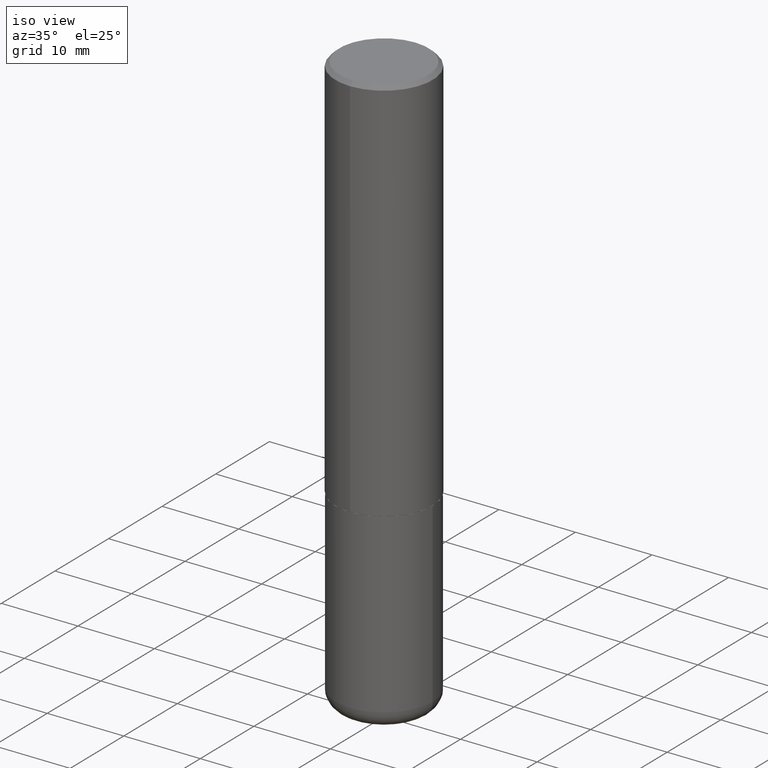
[diagram: clean part render]
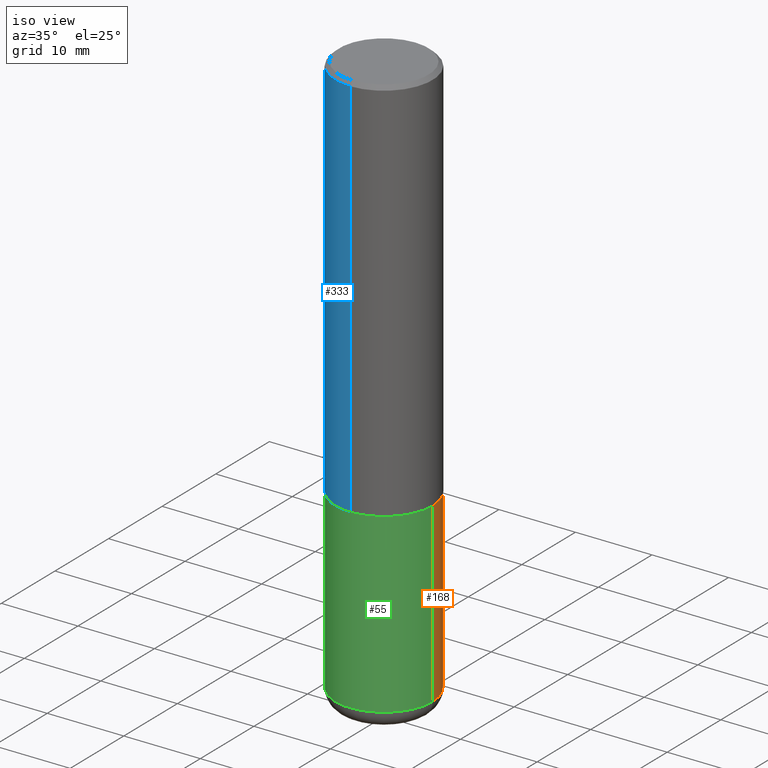
[diagram: same view with three faces highlighted in distinct colors, each labeled with its STEP entity id]
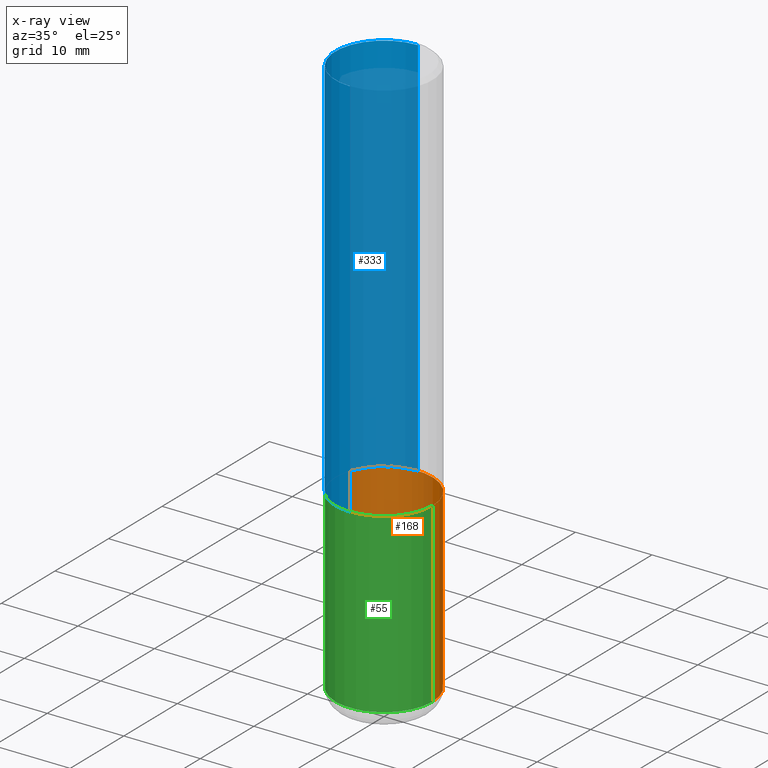
[diagram: x-ray of the same camera — body ghosted, the three highlighted faces saturated]
A machine part, iso view with three faces highlighted in distinct colors.
The next image is the same camera in x-ray (body ghosted, the three faces saturated) — at least one of them is partly hidden behind the body in this view.
Their STEP definitions:

[orange] entity #168 — the highlighted cylindrical surface (partial cylindrical patch) has radius 6.35 mm, axis along (-0, 0, 1).
#6 = VERTEX_POINT ( 'NONE', #291 ) ;
#7 = CIRCLE ( 'NONE', #208, 0.2500000000000000000 ) ;
#11 = DIRECTION ( 'NONE',  ( -2.445468806185136877E-29, 3.491481338843145188E-15, 1.000000000000000000 ) ) ;
#20 = CARTESIAN_POINT ( 'NONE',  ( -0.2500000000000000000, -6.795229847459672846E-15, -2.000000000000000444 ) ) ;
#36 = VERTEX_POINT ( 'NONE', #230 ) ;
#47 = LINE ( 'NONE', #244, #409 ) ;
#88 = FACE_OUTER_BOUND ( 'NONE', #135, .T. ) ;
#92 = ORIENTED_EDGE ( 'NONE', *, *, #198, .T. ) ;
#111 = ORIENTED_EDGE ( 'NONE', *, *, #249, .F. ) ;
#123 = CYLINDRICAL_SURFACE ( 'NONE', #316, 0.2500000000000000000 ) ;
#130 = CARTESIAN_POINT ( 'NONE',  ( 4.890937612370273754E-29, -6.982962677686291954E-15, -2.000000000000000444 ) ) ;
#135 = EDGE_LOOP ( 'NONE', ( #92, #375, #111, #345 ) ) ;
#157 = DIRECTION ( 'NONE',  ( 1.000000000000000000, -6.982962677686266711E-15, 4.876176775795935793E-29 ) ) ;
#158 = VERTEX_POINT ( 'NONE', #20 ) ;
#159 = DIRECTION ( 'NONE',  ( 1.000000000000000000, -6.982962677686266711E-15, 0.000000000000000000 ) ) ;
#168 = ADVANCED_FACE ( 'NONE', ( #88 ), #123, .T. ) ;
#197 = CIRCLE ( 'NONE', #317, 0.2500000000000000555 ) ;
#198 = EDGE_CURVE ( 'NONE', #6, #36, #197, .T. ) ;
#208 = AXIS2_PLACEMENT_3D ( 'NONE', #130, #414, #159 ) ;
#230 = CARTESIAN_POINT ( 'NONE',  ( -0.2500000000000000000, -8.383853856633304202E-15, -2.910000000000000586 ) ) ;
#244 = CARTESIAN_POINT ( 'NONE',  ( 0.2500000000000000000, -1.745740669421566678E-15, 1.219044193948983948E-29 ) ) ;
#249 = EDGE_CURVE ( 'NONE', #260, #158, #7, .T. ) ;
#251 = CARTESIAN_POINT ( 'NONE',  ( 0.000000000000000000, 0.000000000000000000, 0.000000000000000000 ) ) ;
#260 = VERTEX_POINT ( 'NONE', #300 ) ;
#288 = CARTESIAN_POINT ( 'NONE',  ( 7.116314225998749245E-29, -1.016021069603355467E-14, -2.910000000000000586 ) ) ;
#291 = CARTESIAN_POINT ( 'NONE',  ( 0.2500000000000000000, -1.190595136545512292E-14, -2.910000000000000586 ) ) ;
#300 = CARTESIAN_POINT ( 'NONE',  ( 0.2500000000000000000, -8.728703347107858632E-15, -2.000000000000000444 ) ) ;
#316 = AXIS2_PLACEMENT_3D ( 'NONE', #251, #344, #157 ) ;
#317 = AXIS2_PLACEMENT_3D ( 'NONE', #288, #379, #347 ) ;
#332 = CARTESIAN_POINT ( 'NONE',  ( -0.2500000000000000000, 1.776356839400250465E-15, -1.229733772563726445E-29 ) ) ;
#344 = DIRECTION ( 'NONE',  ( -2.445468806185136597E-29, 3.491481338843145583E-15, 1.000000000000000000 ) ) ;
#345 = ORIENTED_EDGE ( 'NONE', *, *, #413, .F. ) ;
#347 = DIRECTION ( 'NONE',  ( 1.000000000000000000, -6.982962677686269077E-15, 0.000000000000000000 ) ) ;
#359 = LINE ( 'NONE', #332, #362 ) ;
#362 = VECTOR ( 'NONE', #392, 39.37007874015748143 ) ;
#367 = EDGE_CURVE ( 'NONE', #36, #158, #359, .T. ) ;
#375 = ORIENTED_EDGE ( 'NONE', *, *, #367, .T. ) ;
#379 = DIRECTION ( 'NONE',  ( -2.445468806185136597E-29, 3.491481338843145583E-15, 1.000000000000000000 ) ) ;
#392 = DIRECTION ( 'NONE',  ( -2.445468806185136877E-29, 3.491481338843145188E-15, 1.000000000000000000 ) ) ;
#409 = VECTOR ( 'NONE', #11, 39.37007874015748143 ) ;
#413 = EDGE_CURVE ( 'NONE', #6, #260, #47, .T. ) ;
#414 = DIRECTION ( 'NONE',  ( -2.445468806185136597E-29, 3.491481338843145583E-15, 1.000000000000000000 ) ) ;

[blue] entity #333 — the highlighted cylindrical surface (partial cylindrical patch) has radius 6.35 mm, axis along (-0, 0, 1).
#5 = DIRECTION ( 'NONE',  ( -6.982962677686266711E-15, -1.000000000000000000, 3.490774419091693834E-15 ) ) ;
#21 = EDGE_CURVE ( 'NONE', #285, #309, #352, .T. ) ;
#27 = CYLINDRICAL_SURFACE ( 'NONE', #262, 0.2500000000000001110 ) ;
#57 = CARTESIAN_POINT ( 'NONE',  ( 4.891924891218388487E-31, -6.981548838183405960E-17, -0.02000000000000005593 ) ) ;
#61 = CARTESIAN_POINT ( 'NONE',  ( 1.745740669421566875E-15, 0.2499999999999999167, -0.02000000000000092676 ) ) ;
#62 = EDGE_CURVE ( 'NONE', #309, #189, #370, .T. ) ;
#64 = DIRECTION ( 'NONE',  ( -2.445962445609187395E-29, 3.490774419091693439E-15, 1.000000000000000000 ) ) ;
#68 = CARTESIAN_POINT ( 'NONE',  ( 0.000000000000000000, 0.000000000000000000, 0.000000000000000000 ) ) ;
#76 = ORIENTED_EDGE ( 'NONE', *, *, #110, .T. ) ;
#82 = DIRECTION ( 'NONE',  ( -2.445962445609187114E-29, 3.490774419091693439E-15, 1.000000000000000000 ) ) ;
#90 = CARTESIAN_POINT ( 'NONE',  ( -1.715124499442882299E-15, -0.2500000000000000555, -0.01999999999999918510 ) ) ;
#99 = DIRECTION ( 'NONE',  ( -2.445962445609187395E-29, 3.490774419091693439E-15, 1.000000000000000000 ) ) ;
#110 = EDGE_CURVE ( 'NONE', #382, #189, #155, .T. ) ;
#141 = CIRCLE ( 'NONE', #374, 0.2500000000000002220 ) ;
#146 = VECTOR ( 'NONE', #82, 39.37007874015748143 ) ;
#155 = LINE ( 'NONE', #185, #146 ) ;
#185 = CARTESIAN_POINT ( 'NONE',  ( -1.745740669421567467E-15, -0.2500000000000001110, 8.726936047729238529E-16 ) ) ;
#189 = VERTEX_POINT ( 'NONE', #90 ) ;
#193 = ORIENTED_EDGE ( 'NONE', *, *, #21, .F. ) ;
#232 = EDGE_CURVE ( 'NONE', #285, #382, #141, .T. ) ;
#254 = ORIENTED_EDGE ( 'NONE', *, *, #62, .F. ) ;
#258 = CARTESIAN_POINT ( 'NONE',  ( 1.776356839400251254E-15, 0.2500000000000001110, -8.726936047729238529E-16 ) ) ;
#262 = AXIS2_PLACEMENT_3D ( 'NONE', #68, #64, #5 ) ;
#263 = CARTESIAN_POINT ( 'NONE',  ( 1.776356839400276497E-15, 0.2499999999999933109, -1.999000000000000998 ) ) ;
#264 = DIRECTION ( 'NONE',  ( -2.445962445609187395E-29, 3.490774419091693439E-15, 1.000000000000000000 ) ) ;
#269 = CARTESIAN_POINT ( 'NONE',  ( -1.745740669421519149E-15, -0.2500000000000072164, -1.998999999999999444 ) ) ;
#285 = VERTEX_POINT ( 'NONE', #263 ) ;
#296 = DIRECTION ( 'NONE',  ( -6.982962677686266711E-15, -1.000000000000000000, 3.278217592397113101E-15 ) ) ;
#298 = VECTOR ( 'NONE', #381, 39.37007874015748143 ) ;
#302 = DIRECTION ( 'NONE',  ( -6.982962677686265922E-15, -1.000000000000000000, 3.483106191921935554E-15 ) ) ;
#309 = VERTEX_POINT ( 'NONE', #61 ) ;
#314 = AXIS2_PLACEMENT_3D ( 'NONE', #57, #264, #302 ) ;
#328 = CARTESIAN_POINT ( 'NONE',  ( 4.889478928772765840E-29, -6.978058063764295922E-15, -1.999000000000000110 ) ) ;
#333 = ADVANCED_FACE ( 'NONE', ( #358 ), #27, .T. ) ;
#338 = EDGE_LOOP ( 'NONE', ( #193, #364, #76, #254 ) ) ;
#352 = LINE ( 'NONE', #258, #298 ) ;
#358 = FACE_OUTER_BOUND ( 'NONE', #338, .T. ) ;
#364 = ORIENTED_EDGE ( 'NONE', *, *, #232, .T. ) ;
#370 = CIRCLE ( 'NONE', #314, 0.2500000000000000000 ) ;
#374 = AXIS2_PLACEMENT_3D ( 'NONE', #328, #99, #296 ) ;
#381 = DIRECTION ( 'NONE',  ( -2.445962445609187114E-29, 3.490774419091693439E-15, 1.000000000000000000 ) ) ;
#382 = VERTEX_POINT ( 'NONE', #269 ) ;

[green] entity #55 — the highlighted cylindrical surface (partial cylindrical patch) has radius 6.35 mm, axis along (-0, 0, 1).
#3 = DIRECTION ( 'NONE',  ( 1.000000000000000000, -6.982962677686269077E-15, 0.000000000000000000 ) ) ;
#6 = VERTEX_POINT ( 'NONE', #291 ) ;
#11 = DIRECTION ( 'NONE',  ( -2.445468806185136877E-29, 3.491481338843145188E-15, 1.000000000000000000 ) ) ;
#20 = CARTESIAN_POINT ( 'NONE',  ( -0.2500000000000000000, -6.795229847459672846E-15, -2.000000000000000444 ) ) ;
#31 = DIRECTION ( 'NONE',  ( -2.445468806185136597E-29, 3.491481338843145583E-15, 1.000000000000000000 ) ) ;
#36 = VERTEX_POINT ( 'NONE', #230 ) ;
#47 = LINE ( 'NONE', #244, #409 ) ;
#55 = ADVANCED_FACE ( 'NONE', ( #166 ), #91, .T. ) ;
#79 = EDGE_LOOP ( 'NONE', ( #289, #348, #415, #303 ) ) ;
#91 = CYLINDRICAL_SURFACE ( 'NONE', #395, 0.2500000000000000000 ) ;
#158 = VERTEX_POINT ( 'NONE', #20 ) ;
#166 = FACE_OUTER_BOUND ( 'NONE', #79, .T. ) ;
#211 = CIRCLE ( 'NONE', #248, 0.2500000000000000555 ) ;
#225 = DIRECTION ( 'NONE',  ( -2.445468806185136597E-29, 3.491481338843145583E-15, 1.000000000000000000 ) ) ;
#226 = CARTESIAN_POINT ( 'NONE',  ( 0.000000000000000000, 0.000000000000000000, 0.000000000000000000 ) ) ;
#230 = CARTESIAN_POINT ( 'NONE',  ( -0.2500000000000000000, -8.383853856633304202E-15, -2.910000000000000586 ) ) ;
#244 = CARTESIAN_POINT ( 'NONE',  ( 0.2500000000000000000, -1.745740669421566678E-15, 1.219044193948983948E-29 ) ) ;
#248 = AXIS2_PLACEMENT_3D ( 'NONE', #417, #334, #3 ) ;
#253 = EDGE_CURVE ( 'NONE', #36, #6, #211, .T. ) ;
#259 = CIRCLE ( 'NONE', #290, 0.2500000000000000000 ) ;
#260 = VERTEX_POINT ( 'NONE', #300 ) ;
#289 = ORIENTED_EDGE ( 'NONE', *, *, #367, .F. ) ;
#290 = AXIS2_PLACEMENT_3D ( 'NONE', #396, #225, #350 ) ;
#291 = CARTESIAN_POINT ( 'NONE',  ( 0.2500000000000000000, -1.190595136545512292E-14, -2.910000000000000586 ) ) ;
#300 = CARTESIAN_POINT ( 'NONE',  ( 0.2500000000000000000, -8.728703347107858632E-15, -2.000000000000000444 ) ) ;
#303 = ORIENTED_EDGE ( 'NONE', *, *, #383, .F. ) ;
#325 = DIRECTION ( 'NONE',  ( 1.000000000000000000, -6.982962677686266711E-15, 4.876176775795935793E-29 ) ) ;
#332 = CARTESIAN_POINT ( 'NONE',  ( -0.2500000000000000000, 1.776356839400250465E-15, -1.229733772563726445E-29 ) ) ;
#334 = DIRECTION ( 'NONE',  ( -2.445468806185136597E-29, 3.491481338843145583E-15, 1.000000000000000000 ) ) ;
#348 = ORIENTED_EDGE ( 'NONE', *, *, #253, .T. ) ;
#350 = DIRECTION ( 'NONE',  ( 1.000000000000000000, -6.982962677686266711E-15, 0.000000000000000000 ) ) ;
#359 = LINE ( 'NONE', #332, #362 ) ;
#362 = VECTOR ( 'NONE', #392, 39.37007874015748143 ) ;
#367 = EDGE_CURVE ( 'NONE', #36, #158, #359, .T. ) ;
#383 = EDGE_CURVE ( 'NONE', #158, #260, #259, .T. ) ;
#392 = DIRECTION ( 'NONE',  ( -2.445468806185136877E-29, 3.491481338843145188E-15, 1.000000000000000000 ) ) ;
#395 = AXIS2_PLACEMENT_3D ( 'NONE', #226, #31, #325 ) ;
#396 = CARTESIAN_POINT ( 'NONE',  ( 4.890937612370273754E-29, -6.982962677686291954E-15, -2.000000000000000444 ) ) ;
#409 = VECTOR ( 'NONE', #11, 39.37007874015748143 ) ;
#413 = EDGE_CURVE ( 'NONE', #6, #260, #47, .T. ) ;
#415 = ORIENTED_EDGE ( 'NONE', *, *, #413, .T. ) ;
#417 = CARTESIAN_POINT ( 'NONE',  ( 7.116314225998749245E-29, -1.016021069603355467E-14, -2.910000000000000586 ) ) ;